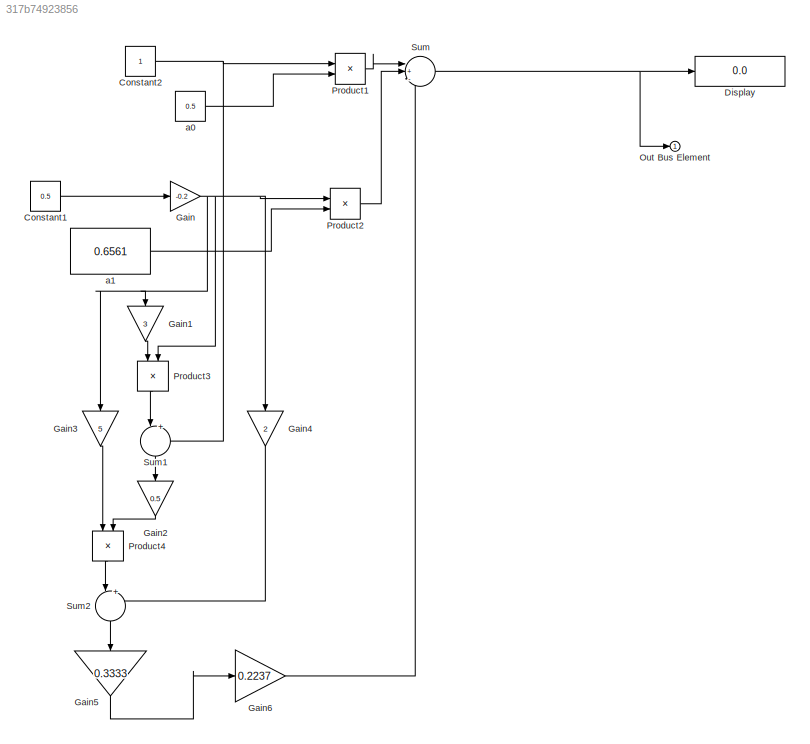
MODEL slx_317b74923856
KIND model
CONFIG AbsTol = auto
CONFIG EnableMultiTasking = off
CONFIG FixedStep = auto
CONFIG MaxStep = auto
CONFIG MinStep = auto
CONFIG RelTol = 1e-3
CONFIG SampleTimeConstraint = Unconstrained
CONFIG SolverName = FixedStepDiscrete
CONFIG StartTime = 0.0
CONFIG StopTime = 10.0
BLOCK [Constant] Constant1
  OutDataTypeStr = fixdt(1,16)
  Value = 0.5
BLOCK [Constant] Constant2
  OutDataTypeStr = fixdt(1,16)
BLOCK [Display] Display
  Decimation = 1
  Ports = [1]
BLOCK [Gain] Gain
  Gain = -0.2
  OutDataTypeStr = fixdt(1,16,8)
BLOCK [Gain] Gain1
  Gain = 3
  NameLocation = left
  OutDataTypeStr = fixdt(1,16,8)
BLOCK [Gain] Gain2
  Gain = 0.5
  NameLocation = left
  OutDataTypeStr = fixdt(1,16,8)
BLOCK [Gain] Gain3
  Gain = 5
  NameLocation = left
  OutDataTypeStr = fixdt(1,16,5)
BLOCK [Gain] Gain4
  Gain = 2
  NameLocation = left
  OutDataTypeStr = fixdt(1,16,8)
BLOCK [Gain] Gain5
  Gain = 0.3333
  NameLocation = left
  OutDataTypeStr = fixdt(1,16,8)
BLOCK [Gain] Gain6
  Gain = 0.2237
  OutDataTypeStr = fixdt(1,16,8)
BLOCK [Outport] Out Bus Element
  VectorParamsAs1DForOutWhenUnconnected = off
BLOCK [Product] Product1
  OutDataTypeStr = Inherit: Same as first input
  Ports = [2, 1]
BLOCK [Product] Product2
  OutDataTypeStr = Inherit: Same as first input
  Ports = [2, 1]
BLOCK [Product] Product3
  NameLocation = left
  OutDataTypeStr = Inherit: Same as first input
  Ports = [2, 1]
BLOCK [Product] Product4
  NameLocation = left
  OutDataTypeStr = Inherit: Same as first input
  Ports = [2, 1]
BLOCK [Sum] Sum
  Inputs = |+-+
  Ports = [3, 1]
BLOCK [Sum] Sum1
  Inputs = |+-
  NameLocation = left
  Ports = [2, 1]
BLOCK [Sum] Sum2
  Inputs = |+-
  NameLocation = left
  Ports = [2, 1]
BLOCK [Constant] a0
  OutDataTypeStr = fixdt(1,16)
  Value = 0.5
BLOCK [Constant] a1
  LockScale = on
  OutDataTypeStr = fixdt(1,16)
  Value = 0.6561
  VectorParams1D = off
LINE Constant1:1 -> Gain:1
NET Constant2:1 -> Product1:1, Sum1:2
LINE Gain1:1 -> Product3:1
LINE Gain2:1 -> Product4:2
LINE Gain3:1 -> Product4:1
LINE Gain4:1 -> Sum2:2
LINE Gain5:1 -> Gain6:1
LINE Gain6:1 -> Sum:3
NET Gain:1 -> Gain1:1, Gain3:1, Gain4:1, Product2:1, Product3:2
LINE Product1:1 -> Sum:1
LINE Product2:1 -> Sum:2
LINE Product3:1 -> Sum1:1
LINE Product4:1 -> Sum2:1
LINE Sum1:1 -> Gain2:1
LINE Sum2:1 -> Gain5:1
NET Sum:1 -> Display:1, Out Bus Element:1
LINE a0:1 -> Product1:2
LINE a1:1 -> Product2:2
note: NET lines group one-source signal fan-out (src -> all destinations, sorted); 1:1 wires keep LINE
